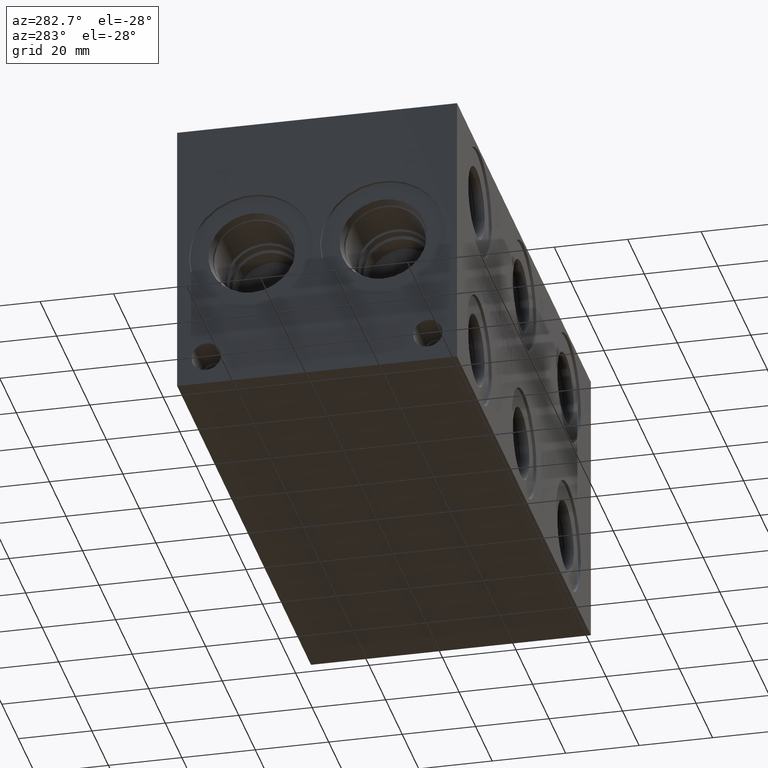
[diagram: clean part render]
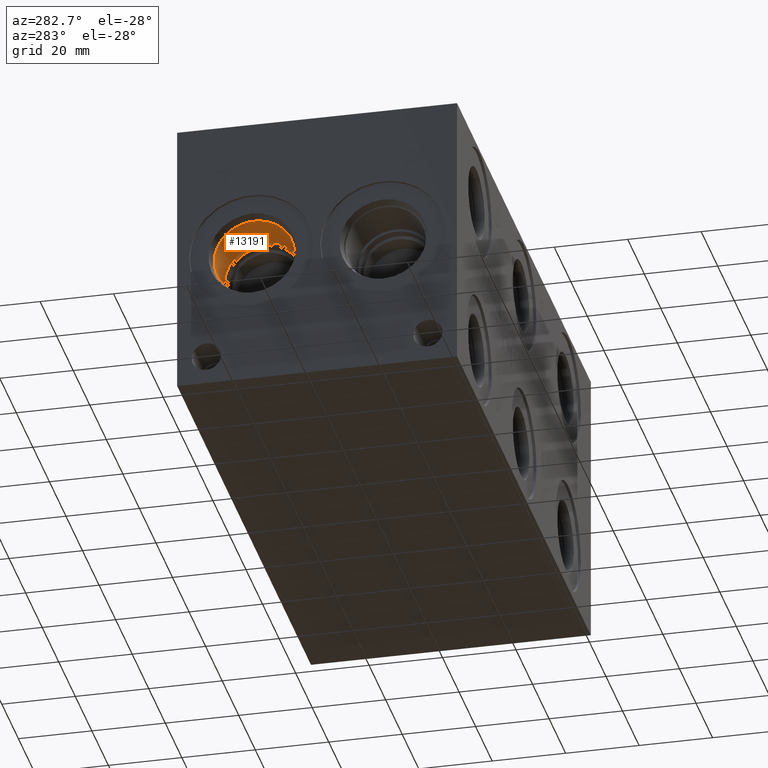
[diagram: same view with one face highlighted and labeled with its STEP entity id]
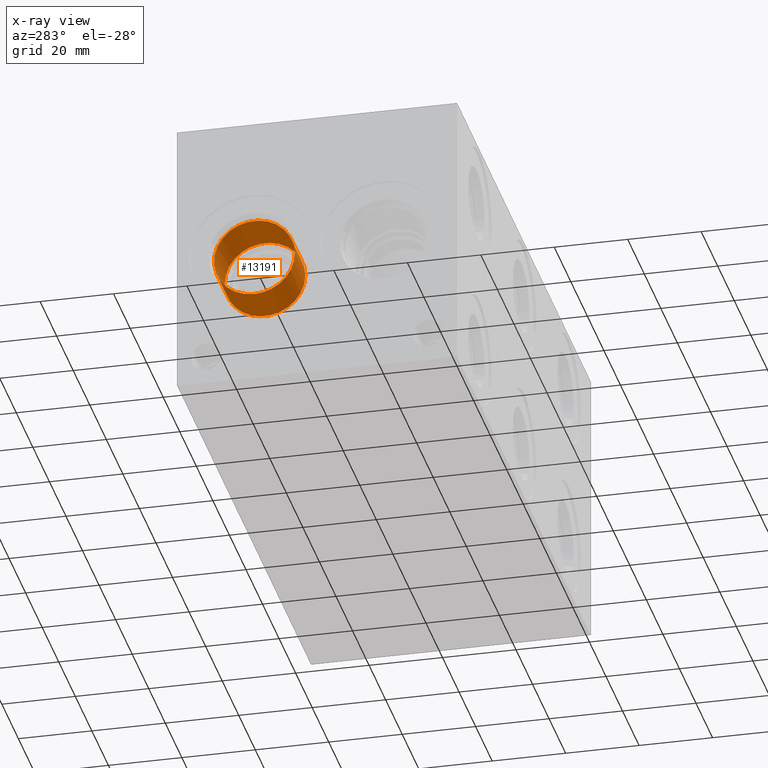
[diagram: x-ray of the same camera — body ghosted, the highlighted face saturated]
A machine part, auxiliary view. The second image highlights one B-rep face of the part: STEP entity #13191.
The next image is the same camera in x-ray: the body ghosted, the highlighted face saturated — about 0% of this face is hidden behind the body in this view.
In plain terms, the highlighted cylindrical surface (bore or boss wall) has radius 10.9982 mm, axis along (-1, 0, 0).
Its self-contained STEP definition (entity closure, byte-faithful):
#35=CYLINDRICAL_SURFACE('',#13843,10.9982);
#276=CIRCLE('',#13840,10.9982);
#277=CIRCLE('',#13841,10.9982);
#279=CIRCLE('',#13844,10.9982);
#280=CIRCLE('',#13845,10.9982);
#1559=FACE_OUTER_BOUND('',#2318,.T.);
#2318=EDGE_LOOP('',(#11225,#11226,#11227,#11228,#11229,#11230));
#3587=LINE('',#22238,#4771);
#4771=VECTOR('',#16277,10.9982);
#6203=VERTEX_POINT('',#22228);
#6204=VERTEX_POINT('',#22229);
#6206=VERTEX_POINT('',#22235);
#6207=VERTEX_POINT('',#22236);
#7958=EDGE_CURVE('',#6203,#6204,#276,.T.);
#7959=EDGE_CURVE('',#6204,#6203,#277,.T.);
#7961=EDGE_CURVE('',#6206,#6207,#279,.T.);
#7962=EDGE_CURVE('',#6206,#6204,#3587,.T.);
#7963=EDGE_CURVE('',#6207,#6206,#280,.T.);
#11225=ORIENTED_EDGE('',*,*,#7961,.F.);
#11226=ORIENTED_EDGE('',*,*,#7962,.T.);
#11227=ORIENTED_EDGE('',*,*,#7958,.F.);
#11228=ORIENTED_EDGE('',*,*,#7959,.F.);
#11229=ORIENTED_EDGE('',*,*,#7962,.F.);
#11230=ORIENTED_EDGE('',*,*,#7963,.F.);
#13191=ADVANCED_FACE('',(#1559),#35,.F.);
#13840=AXIS2_PLACEMENT_3D('',#22230,#16267,#16268);
#13841=AXIS2_PLACEMENT_3D('',#22231,#16269,#16270);
#13843=AXIS2_PLACEMENT_3D('',#22234,#16273,#16274);
#13844=AXIS2_PLACEMENT_3D('',#22237,#16275,#16276);
#13845=AXIS2_PLACEMENT_3D('',#22239,#16278,#16279);
#16267=DIRECTION('center_axis',(-1.,0.,0.));
#16268=DIRECTION('ref_axis',(0.,1.,0.));
#16269=DIRECTION('center_axis',(-1.,0.,0.));
#16270=DIRECTION('ref_axis',(0.,1.,0.));
#16273=DIRECTION('center_axis',(-1.,0.,0.));
#16274=DIRECTION('ref_axis',(0.,1.,0.));
#16275=DIRECTION('center_axis',(1.,0.,0.));
#16276=DIRECTION('ref_axis',(0.,1.,0.));
#16277=DIRECTION('',(1.,0.,0.));
#16278=DIRECTION('center_axis',(1.,0.,0.));
#16279=DIRECTION('ref_axis',(0.,1.,0.));
#22228=CARTESIAN_POINT('',(16.2814,66.9544,38.1));
#22229=CARTESIAN_POINT('',(16.2814,44.958,38.1));
#22230=CARTESIAN_POINT('Origin',(16.2814,55.9562,38.1));
#22231=CARTESIAN_POINT('Origin',(16.2814,55.9562,38.1));
#22234=CARTESIAN_POINT('Origin',(8.1407,55.9562,38.1));
#22235=CARTESIAN_POINT('',(3.4417,44.958,38.1));
#22236=CARTESIAN_POINT('',(3.4417,55.9562,27.1018));
#22237=CARTESIAN_POINT('Origin',(3.4417,55.9562,38.1));
#22238=CARTESIAN_POINT('',(8.1407,44.958,38.1));
#22239=CARTESIAN_POINT('Origin',(3.4417,55.9562,38.1));